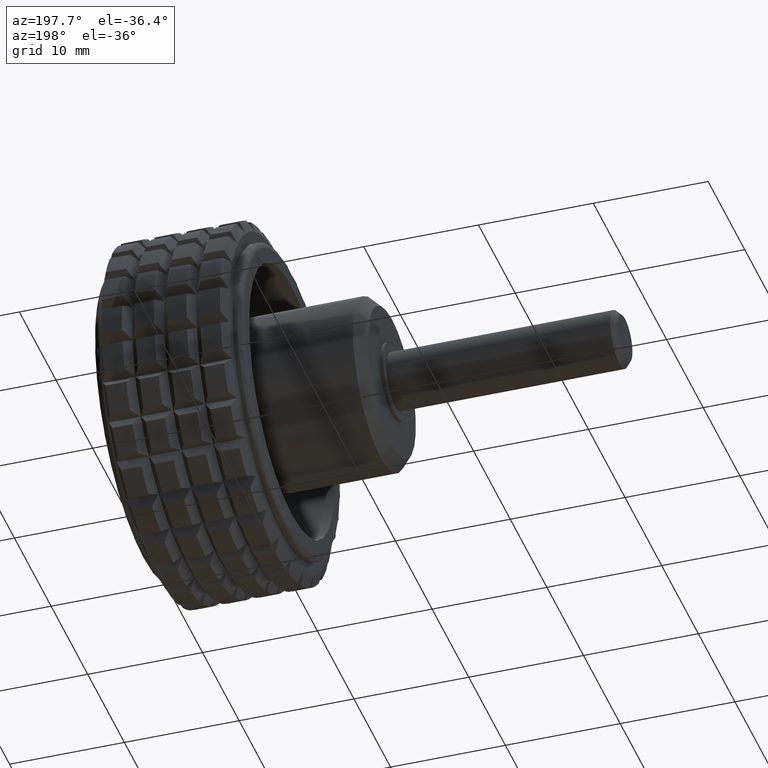
[diagram: clean part render]
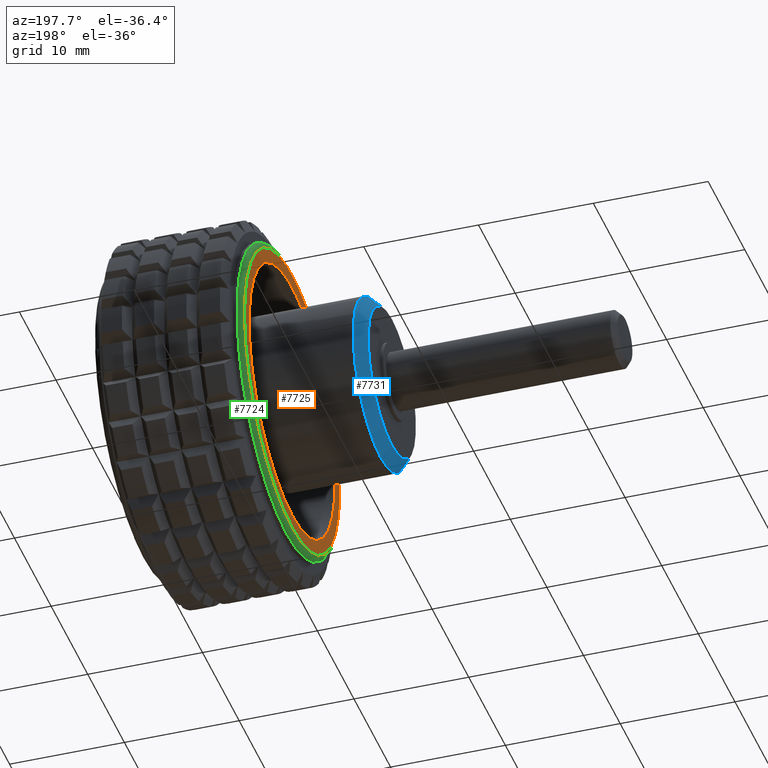
[diagram: same view with three faces highlighted in distinct colors, each labeled with its STEP entity id]
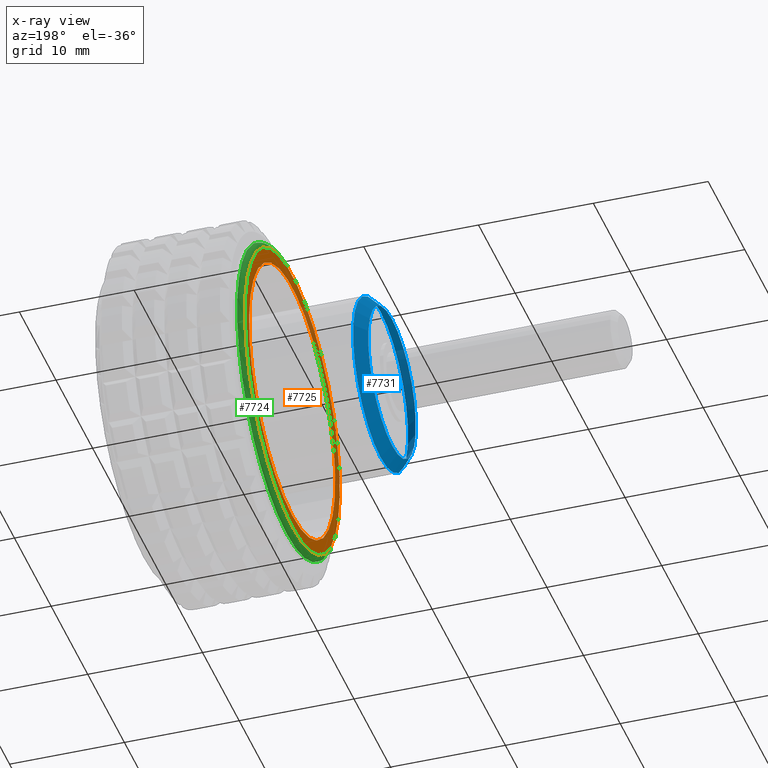
[diagram: x-ray of the same camera — body ghosted, the three highlighted faces saturated]
A machine part, auxiliary view with three faces highlighted in distinct colors.
The next image is the same camera in x-ray (body ghosted, the three faces saturated) — at least one of them is partly hidden behind the body in this view.
Their STEP definitions:

[orange] entity #7725 — the highlighted planar face has unit normal (1, 0, 0).
#1455=FACE_BOUND('',#2591,.T.);
#2017=FACE_OUTER_BOUND('',#2590,.T.);
#2590=EDGE_LOOP('',(#6929));
#2591=EDGE_LOOP('',(#6930));
#2971=CIRCLE('',#8652,13.);
#2972=CIRCLE('',#8654,11.75);
#3558=VERTEX_POINT('',#14409);
#3559=VERTEX_POINT('',#14412);
#4685=EDGE_CURVE('',#3558,#3558,#2971,.T.);
#4686=EDGE_CURVE('',#3559,#3559,#2972,.T.);
#6929=ORIENTED_EDGE('',*,*,#4685,.F.);
#6930=ORIENTED_EDGE('',*,*,#4686,.T.);
#7169=PLANE('',#8653);
#7725=ADVANCED_FACE('',(#2017,#1455),#7169,.F.);
#8652=AXIS2_PLACEMENT_3D('',#14410,#10827,#10828);
#8653=AXIS2_PLACEMENT_3D('',#14411,#10829,#10830);
#8654=AXIS2_PLACEMENT_3D('',#14413,#10831,#10832);
#10827=DIRECTION('center_axis',(1.,0.,0.));
#10828=DIRECTION('ref_axis',(0.,0.,-1.));
#10829=DIRECTION('center_axis',(1.,0.,0.));
#10830=DIRECTION('ref_axis',(0.,0.,-1.));
#10831=DIRECTION('center_axis',(1.,0.,0.));
#10832=DIRECTION('ref_axis',(0.,0.,-1.));
#14409=CARTESIAN_POINT('',(9.,0.,-13.));
#14410=CARTESIAN_POINT('Origin',(9.,0.,0.));
#14411=CARTESIAN_POINT('Origin',(9.,11.75,0.));
#14412=CARTESIAN_POINT('',(9.,0.,-11.75));
#14413=CARTESIAN_POINT('Origin',(9.,0.,0.));

[blue] entity #7731 — the highlighted conical surface has half-angle 45 deg.
#1442=CONICAL_SURFACE('',#8665,6.5,45.0000000000001);
#1461=FACE_BOUND('',#2603,.T.);
#2023=FACE_OUTER_BOUND('',#2602,.T.);
#2602=EDGE_LOOP('',(#6941));
#2603=EDGE_LOOP('',(#6942));
#2977=CIRCLE('',#8664,7.5);
#2978=CIRCLE('',#8666,6.5);
#3564=VERTEX_POINT('',#14427);
#3565=VERTEX_POINT('',#14430);
#4691=EDGE_CURVE('',#3564,#3564,#2977,.T.);
#4692=EDGE_CURVE('',#3565,#3565,#2978,.T.);
#6941=ORIENTED_EDGE('',*,*,#4691,.F.);
#6942=ORIENTED_EDGE('',*,*,#4692,.T.);
#7731=ADVANCED_FACE('',(#2023,#1461),#1442,.T.);
#8664=AXIS2_PLACEMENT_3D('',#14428,#10851,#10852);
#8665=AXIS2_PLACEMENT_3D('',#14429,#10853,#10854);
#8666=AXIS2_PLACEMENT_3D('',#14431,#10855,#10856);
#10851=DIRECTION('center_axis',(1.,0.,0.));
#10852=DIRECTION('ref_axis',(0.,0.,-1.));
#10853=DIRECTION('center_axis',(1.,0.,0.));
#10854=DIRECTION('ref_axis',(0.,0.,-1.));
#10855=DIRECTION('center_axis',(1.,0.,0.));
#10856=DIRECTION('ref_axis',(0.,0.,-1.));
#14427=CARTESIAN_POINT('',(1.3,0.,-7.5));
#14428=CARTESIAN_POINT('Origin',(1.3,0.,0.));
#14429=CARTESIAN_POINT('Origin',(0.300000000000002,0.,0.));
#14430=CARTESIAN_POINT('',(0.300000000000002,0.,-6.5));
#14431=CARTESIAN_POINT('Origin',(0.300000000000002,0.,0.));

[green] entity #7724 — the highlighted toroidal blend (fillet) surface has major radius 13 mm and minor (blend) radius 0.5 mm.
#15=TOROIDAL_SURFACE('',#8651,13.,0.5);
#1454=FACE_BOUND('',#2589,.T.);
#2016=FACE_OUTER_BOUND('',#2588,.T.);
#2588=EDGE_LOOP('',(#6927));
#2589=EDGE_LOOP('',(#6928));
#2970=CIRCLE('',#8650,13.5);
#2971=CIRCLE('',#8652,13.);
#3557=VERTEX_POINT('',#14406);
#3558=VERTEX_POINT('',#14409);
#4684=EDGE_CURVE('',#3557,#3557,#2970,.T.);
#4685=EDGE_CURVE('',#3558,#3558,#2971,.T.);
#6927=ORIENTED_EDGE('',*,*,#4685,.T.);
#6928=ORIENTED_EDGE('',*,*,#4684,.F.);
#7724=ADVANCED_FACE('',(#2016,#1454),#15,.T.);
#8650=AXIS2_PLACEMENT_3D('',#14407,#10823,#10824);
#8651=AXIS2_PLACEMENT_3D('',#14408,#10825,#10826);
#8652=AXIS2_PLACEMENT_3D('',#14410,#10827,#10828);
#10823=DIRECTION('center_axis',(1.,0.,0.));
#10824=DIRECTION('ref_axis',(0.,0.,-1.));
#10825=DIRECTION('center_axis',(1.,0.,0.));
#10826=DIRECTION('ref_axis',(0.,0.,-1.));
#10827=DIRECTION('center_axis',(1.,0.,0.));
#10828=DIRECTION('ref_axis',(0.,0.,-1.));
#14406=CARTESIAN_POINT('',(9.5,0.,-13.5));
#14407=CARTESIAN_POINT('Origin',(9.5,0.,0.));
#14408=CARTESIAN_POINT('Origin',(9.5,0.,0.));
#14409=CARTESIAN_POINT('',(9.,0.,-13.));
#14410=CARTESIAN_POINT('Origin',(9.,0.,0.));